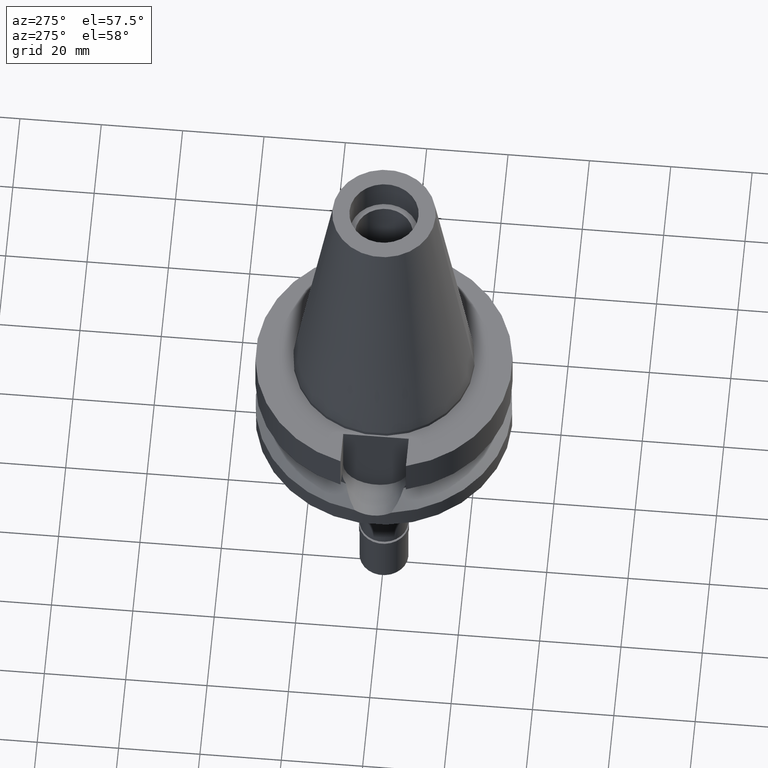
[diagram: clean part render]
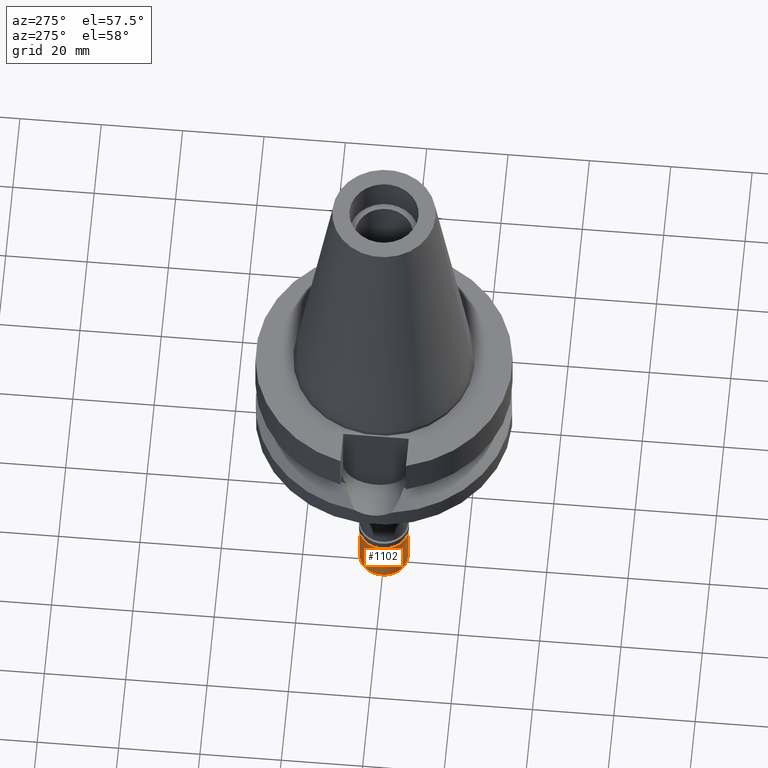
[diagram: same view with one face highlighted and labeled with its STEP entity id]
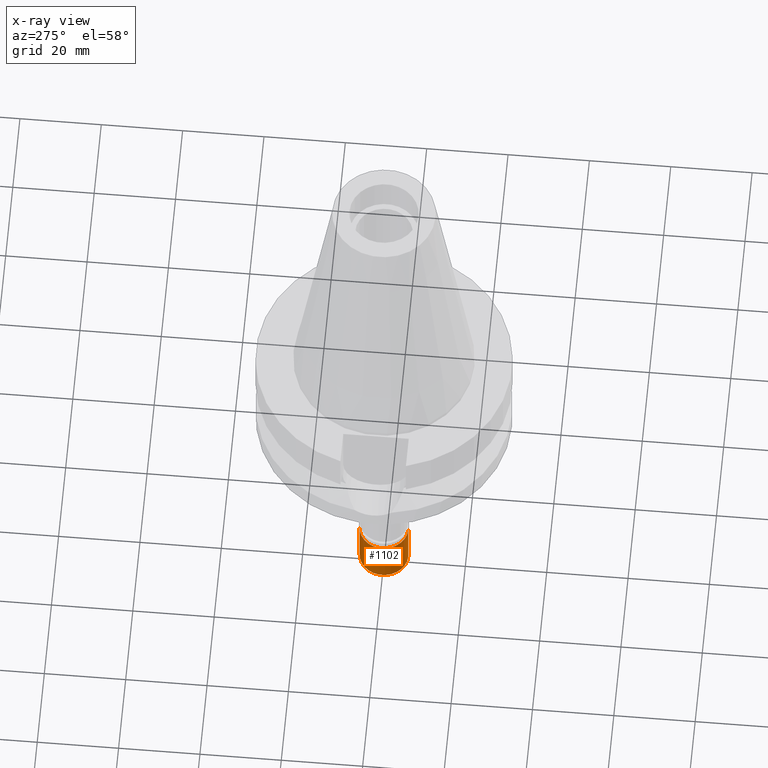
[diagram: x-ray of the same camera — body ghosted, the highlighted face saturated]
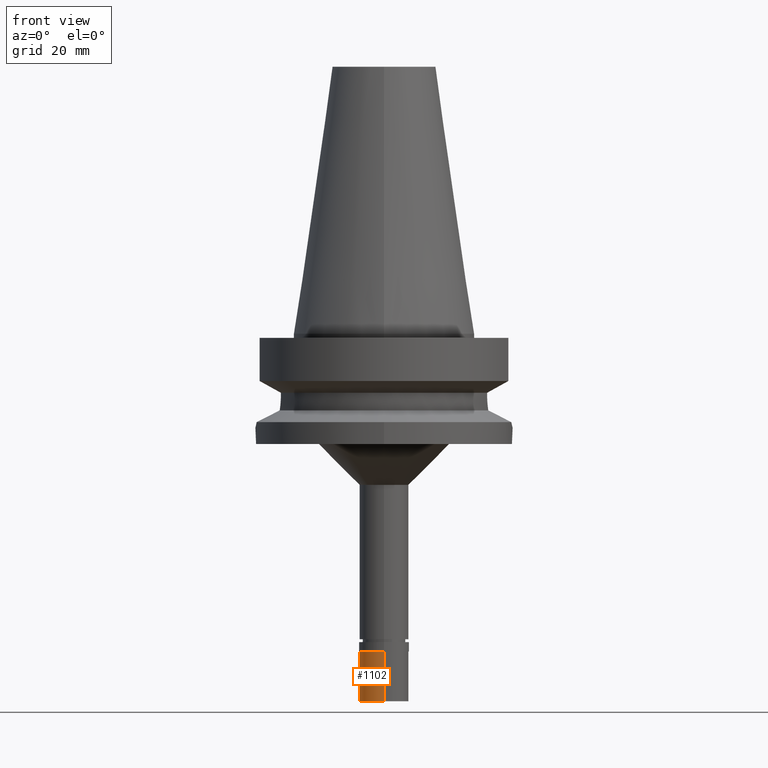
[diagram: same view with one face highlighted and labeled with its STEP entity id]
A machine part, auxiliary view. The second image highlights one B-rep face of the part: STEP entity #1102.
The next image is the same camera in x-ray: the body ghosted, the highlighted face saturated — about 0% of this face is hidden behind the body in this view.
A second angle (front view) of the same face is appended — the face is thin or edge-on in the first view.
In plain terms, the highlighted cylindrical surface (edge-blend (fillet) strip) has radius 6 mm, axis along (0, 0, 1).
Its self-contained STEP definition (entity closure, byte-faithful):
#69 = VERTEX_POINT ( 'NONE', #1739 ) ;
#209 = EDGE_CURVE ( 'NONE', #569, #69, #2464, .T. ) ;
#259 = DIRECTION ( 'NONE',  ( 0.0000000000000000000, 0.0000000000000000000, 1.000000000000000000 ) ) ;
#260 = CARTESIAN_POINT ( 'NONE',  ( 0.0000000000000000000, 0.0000000000000000000, -15.22500000000000142 ) ) ;
#567 = AXIS2_PLACEMENT_3D ( 'NONE', #1167, #259, #653 ) ;
#569 = VERTEX_POINT ( 'NONE', #645 ) ;
#585 = EDGE_CURVE ( 'NONE', #1869, #569, #800, .T. ) ;
#610 = CIRCLE ( 'NONE', #567, 6.000000000000000000 ) ;
#645 = CARTESIAN_POINT ( 'NONE',  ( 0.0000000000000000000, 6.000000000000000000, -2.299999999999999822 ) ) ;
#653 = DIRECTION ( 'NONE',  ( 0.0000000000000000000, 1.000000000000000000, 0.0000000000000000000 ) ) ;
#659 = CARTESIAN_POINT ( 'NONE',  ( 0.0000000000000000000, 0.0000000000000000000, -2.299999999999999822 ) ) ;
#800 = CIRCLE ( 'NONE', #1945, 6.000000000000000000 ) ;
#817 = DIRECTION ( 'NONE',  ( 0.0000000000000000000, 0.0000000000000000000, -1.000000000000000000 ) ) ;
#835 = AXIS2_PLACEMENT_3D ( 'NONE', #260, #1168, #944 ) ;
#883 = EDGE_CURVE ( 'NONE', #1869, #2559, #1701, .T. ) ;
#944 = DIRECTION ( 'NONE',  ( 0.0000000000000000000, 1.000000000000000000, 0.0000000000000000000 ) ) ;
#1102 = ADVANCED_FACE ( 'NONE', ( #1382 ), #2284, .T. ) ;
#1167 = CARTESIAN_POINT ( 'NONE',  ( 0.0000000000000000000, 0.0000000000000000000, -14.50000000000000000 ) ) ;
#1168 = DIRECTION ( 'NONE',  ( 0.0000000000000000000, 0.0000000000000000000, 1.000000000000000000 ) ) ;
#1227 = CARTESIAN_POINT ( 'NONE',  ( 0.0000000000000000000, -6.000000000000000000, -14.50000000000000000 ) ) ;
#1289 = CARTESIAN_POINT ( 'NONE',  ( 0.0000000000000000000, -6.000000000000000000, -2.299999999999999822 ) ) ;
#1382 = FACE_OUTER_BOUND ( 'NONE', #1628, .T. ) ;
#1569 = DIRECTION ( 'NONE',  ( 0.0000000000000000000, 0.0000000000000000000, -1.000000000000000000 ) ) ;
#1602 = DIRECTION ( 'NONE',  ( 0.0000000000000000000, 0.0000000000000000000, -1.000000000000000000 ) ) ;
#1628 = EDGE_LOOP ( 'NONE', ( #2512, #2233, #2157, #2164 ) ) ;
#1701 = LINE ( 'NONE', #1289, #2401 ) ;
#1739 = CARTESIAN_POINT ( 'NONE',  ( 0.0000000000000000000, 6.000000000000000000, -14.50000000000000000 ) ) ;
#1869 = VERTEX_POINT ( 'NONE', #2302 ) ;
#1945 = AXIS2_PLACEMENT_3D ( 'NONE', #659, #1569, #2857 ) ;
#2040 = VECTOR ( 'NONE', #1602, 1000.000000000000000 ) ;
#2157 = ORIENTED_EDGE ( 'NONE', *, *, #585, .T. ) ;
#2164 = ORIENTED_EDGE ( 'NONE', *, *, #209, .T. ) ;
#2217 = CARTESIAN_POINT ( 'NONE',  ( 0.0000000000000000000, 6.000000000000000000, -2.299999999999999822 ) ) ;
#2233 = ORIENTED_EDGE ( 'NONE', *, *, #883, .F. ) ;
#2284 = CYLINDRICAL_SURFACE ( 'NONE', #835, 6.000000000000000000 ) ;
#2302 = CARTESIAN_POINT ( 'NONE',  ( 0.0000000000000000000, -6.000000000000000000, -2.299999999999999822 ) ) ;
#2401 = VECTOR ( 'NONE', #817, 1000.000000000000000 ) ;
#2464 = LINE ( 'NONE', #2217, #2040 ) ;
#2512 = ORIENTED_EDGE ( 'NONE', *, *, #2803, .T. ) ;
#2559 = VERTEX_POINT ( 'NONE', #1227 ) ;
#2803 = EDGE_CURVE ( 'NONE', #69, #2559, #610, .T. ) ;
#2857 = DIRECTION ( 'NONE',  ( 0.0000000000000000000, -1.000000000000000000, 0.0000000000000000000 ) ) ;